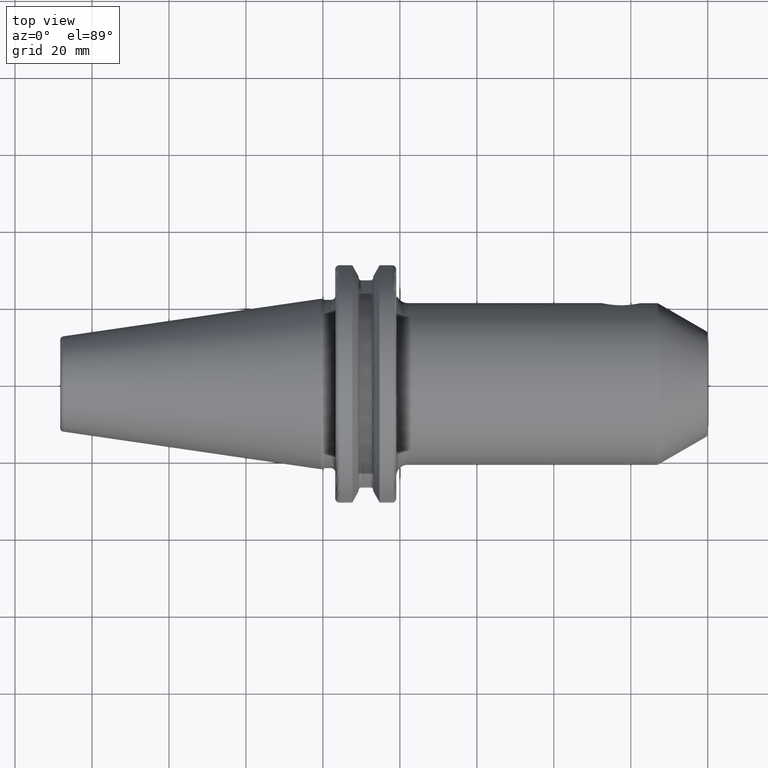
[diagram: clean part render]
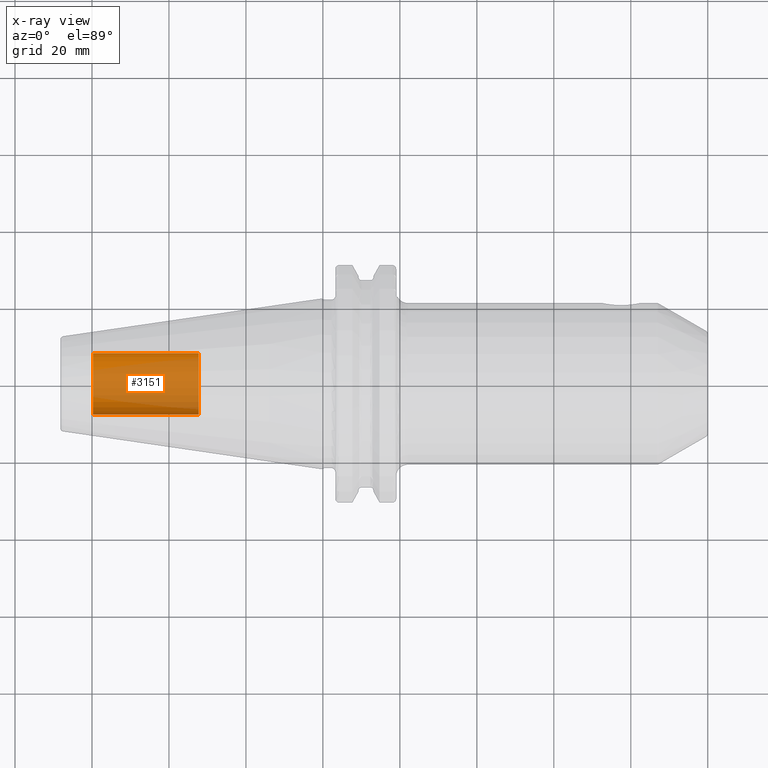
[diagram: x-ray — body ghosted, one internal face saturated and labeled with its STEP entity id]
A machine part, top view, then the same camera in x-ray: the body is ghosted and one INTERNAL B-rep face — a face not visible from any outside direction — is saturated and labeled: STEP entity #3151.
In plain terms, the highlighted cylindrical surface (edge-blend (fillet) strip) has radius 8.0028 mm, axis along (1, 0, 0).
Its self-contained STEP definition (entity closure, byte-faithful):
#3086=CARTESIAN_POINT('',(-5.98E1,0.E0,0.E0));
#3087=DIRECTION('',(-1.E0,0.E0,0.E0));
#3088=DIRECTION('',(0.E0,1.E0,0.E0));
#3089=AXIS2_PLACEMENT_3D('',#3086,#3087,#3088);
#3091=DIRECTION('',(1.E0,0.E0,0.E0));
#3092=VECTOR('',#3091,2.755E1);
#3093=CARTESIAN_POINT('',(-5.98E1,-8.00275E0,0.E0));
#3094=LINE('',#3093,#3092);
#3100=DIRECTION('',(1.E0,0.E0,0.E0));
#3101=VECTOR('',#3100,2.755E1);
#3102=CARTESIAN_POINT('',(-5.98E1,8.00275E0,0.E0));
#3103=LINE('',#3102,#3101);
#3109=CARTESIAN_POINT('',(-3.225E1,0.E0,0.E0));
#3110=DIRECTION('',(1.E0,0.E0,0.E0));
#3111=DIRECTION('',(0.E0,-1.E0,0.E0));
#3112=AXIS2_PLACEMENT_3D('',#3109,#3110,#3111);
#3124=CARTESIAN_POINT('',(-5.98E1,8.00275E0,0.E0));
#3125=CARTESIAN_POINT('',(-5.98E1,-8.00275E0,0.E0));
#3126=VERTEX_POINT('',#3124);
#3127=VERTEX_POINT('',#3125);
#3128=CARTESIAN_POINT('',(-3.225E1,8.00275E0,0.E0));
#3129=CARTESIAN_POINT('',(-3.225E1,-8.00275E0,0.E0));
#3130=VERTEX_POINT('',#3128);
#3131=VERTEX_POINT('',#3129);
#3136=CARTESIAN_POINT('',(-5.98E1,0.E0,0.E0));
#3137=DIRECTION('',(1.E0,0.E0,0.E0));
#3138=DIRECTION('',(0.E0,1.E0,0.E0));
#3139=AXIS2_PLACEMENT_3D('',#3136,#3137,#3138);
#3140=CYLINDRICAL_SURFACE('',#3139,8.00275E0);
#3142=ORIENTED_EDGE('',*,*,#3141,.T.);
#3144=ORIENTED_EDGE('',*,*,#3143,.T.);
#3146=ORIENTED_EDGE('',*,*,#3145,.T.);
#3148=ORIENTED_EDGE('',*,*,#3147,.F.);
#3149=EDGE_LOOP('',(#3142,#3144,#3146,#3148));
#3150=FACE_OUTER_BOUND('',#3149,.F.);
#3151=ADVANCED_FACE('',(#3150),#3140,.T.);
#3090=CIRCLE('',#3089,8.00275E0);
#3113=CIRCLE('',#3112,8.00275E0);
#3141=EDGE_CURVE('',#3126,#3127,#3090,.T.);
#3143=EDGE_CURVE('',#3127,#3131,#3094,.T.);
#3145=EDGE_CURVE('',#3131,#3130,#3113,.T.);
#3147=EDGE_CURVE('',#3126,#3130,#3103,.T.);